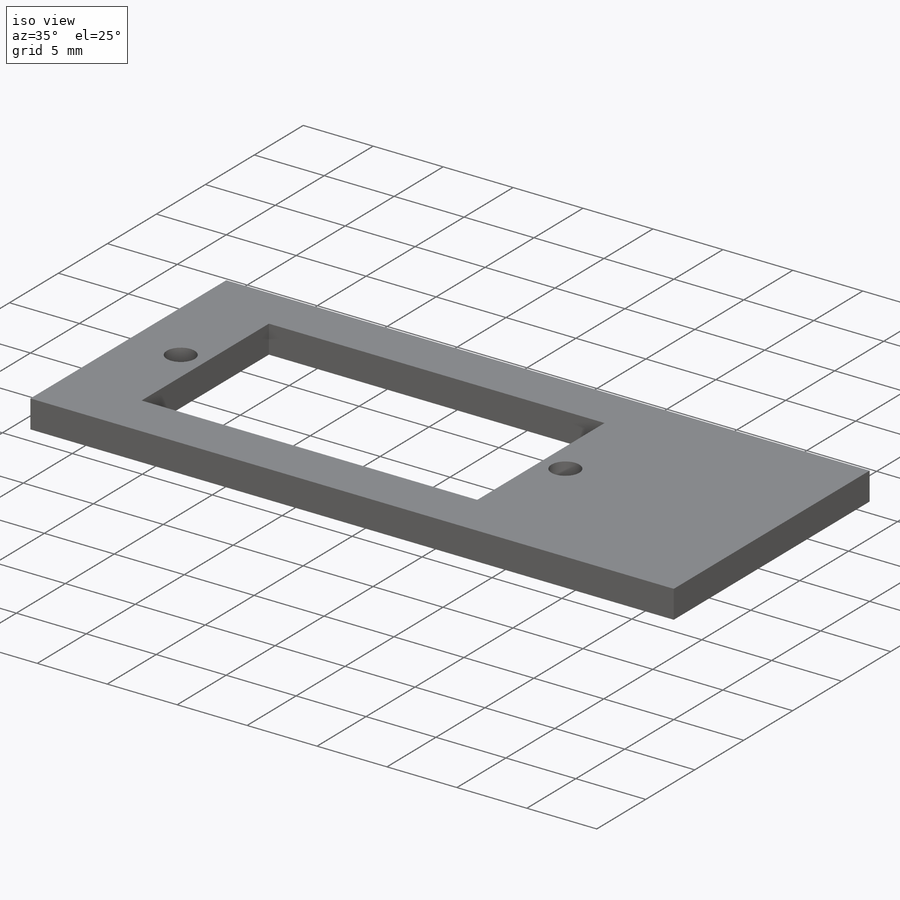
[diagram: iso view]
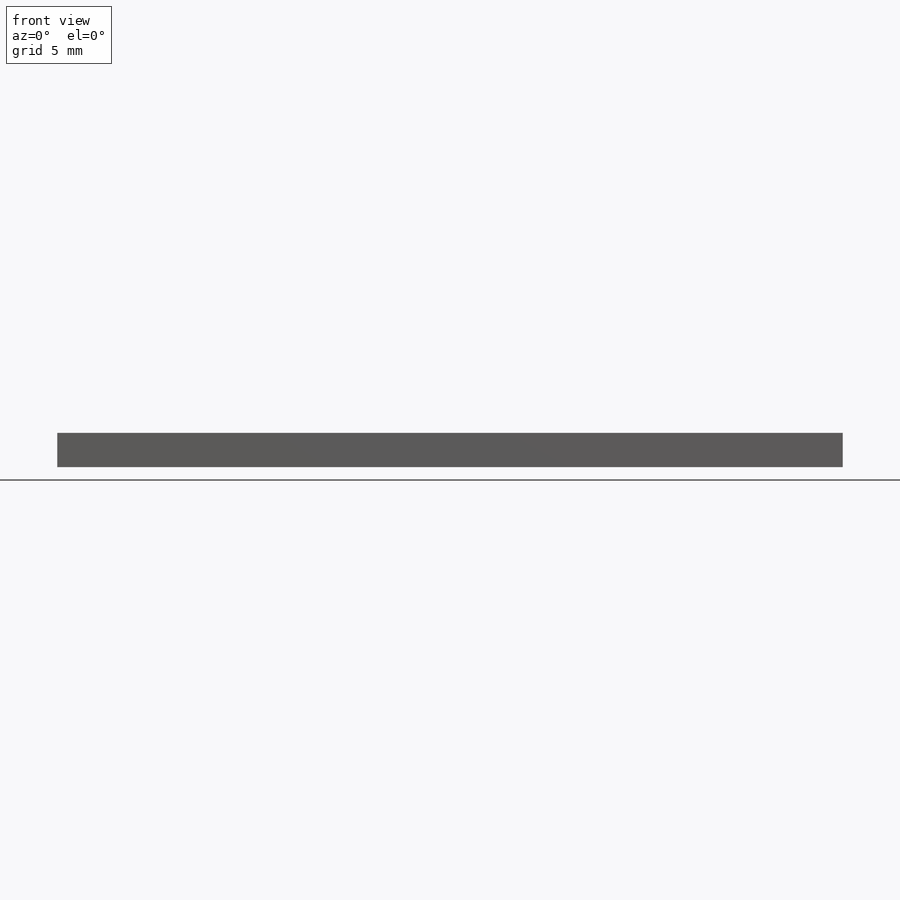
[diagram: front view]
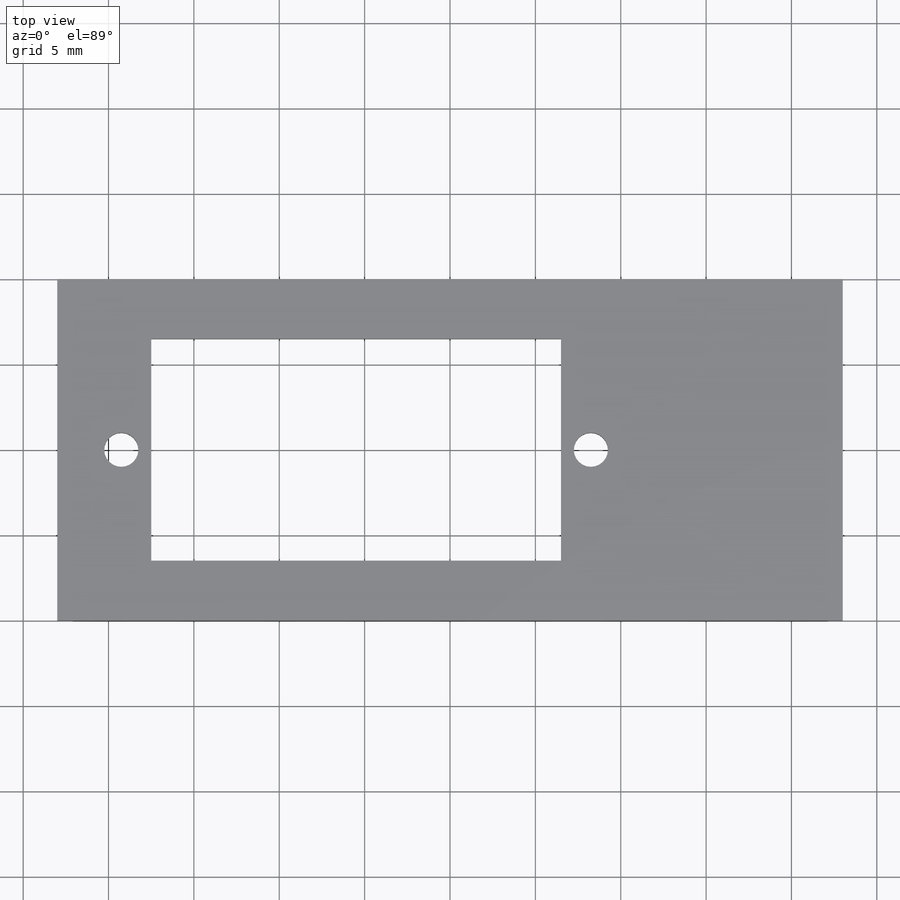
[diagram: top view]
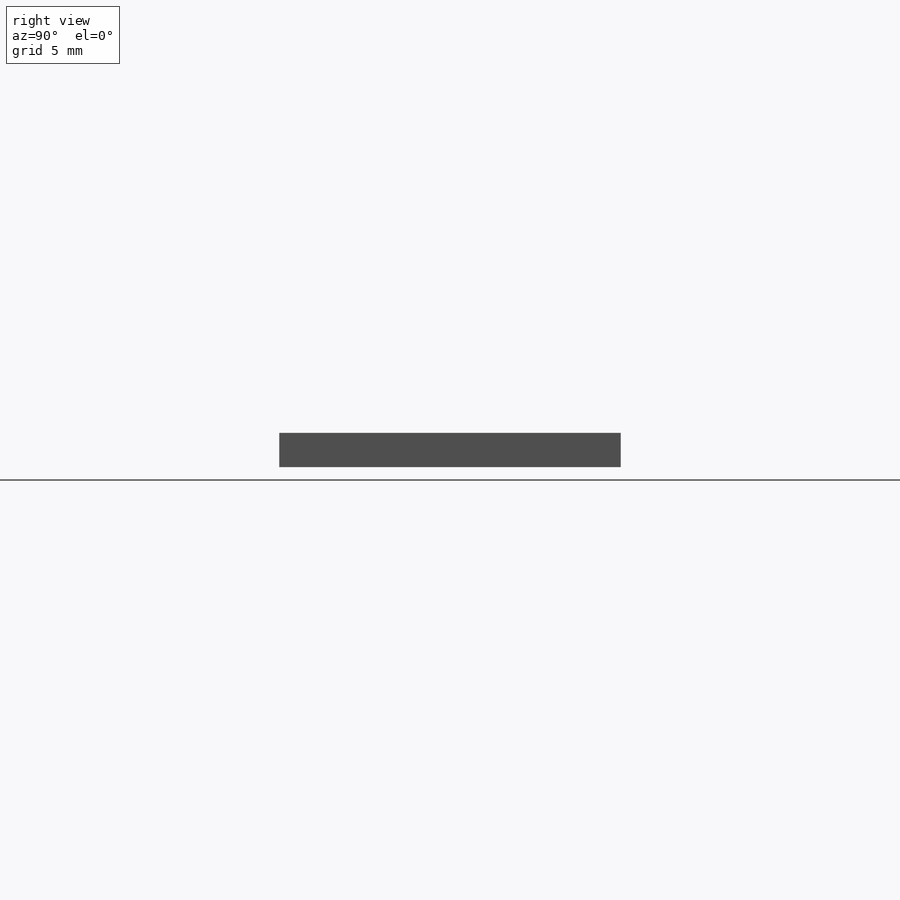
[diagram: right view]
SOLIDWORKS PART (.sldprt)
format: sldprt  version: not decoded by parser v0  size: 183,808 bytes
history: native  units: mm
features: plane x3, sketch x3, cut_extrude x2, material x1, extrude x1 (+10 scaffold rows collapsed)
feature tree (20):
  scaffold x10  (default folders/planes/origin — collapsed)
  material  "uhlíková ocel 7850"
  plane  "Přední rovina"
  plane  "Horní rovina"
  plane  "Pravá rovina"
  sketch  "Skica1"  dims[D1=20.0mm D2=46.0mm]
  extrude  "Přidat vysunutím1"  Depth=2mm
  sketch  "Skica2"  dims[D1=13.0mm D2=24.0mm D3=5.5mm]
  cut_extrude  "Odebrat vysunutím1"  Depth=2mm
  sketch  "Skica3"  dims[c1.D2=2.0mm c1.D1=27.5mm c2.D2=6.5mm]
  cut_extrude  "Odebrat vysunutím2"  Depth=2mm
decode coverage: 6 of 6 modeling features carry decoded parameters
note: suppression state not decoded; provenance and decode notes live in map.json
